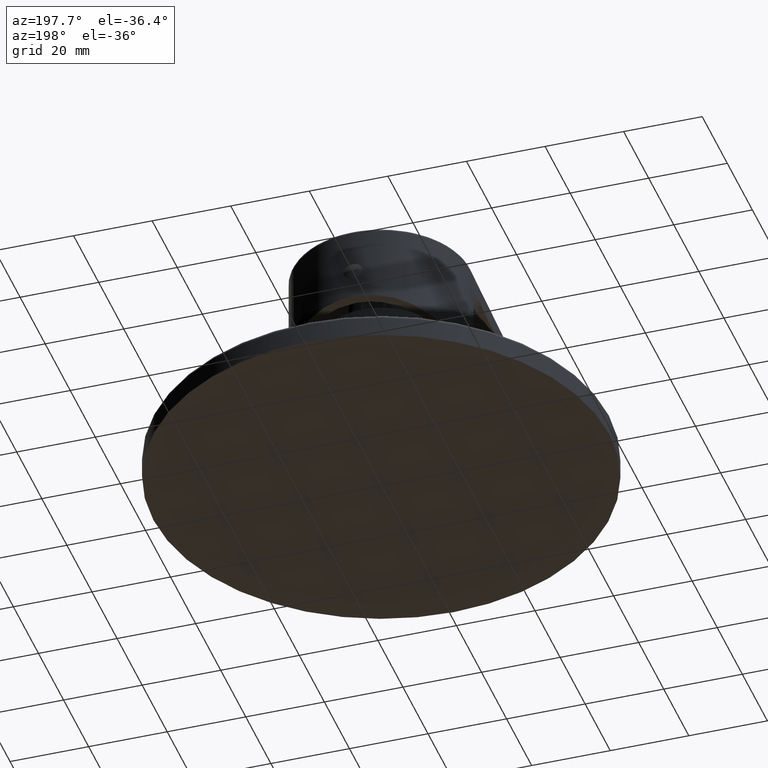
[diagram: clean part render]
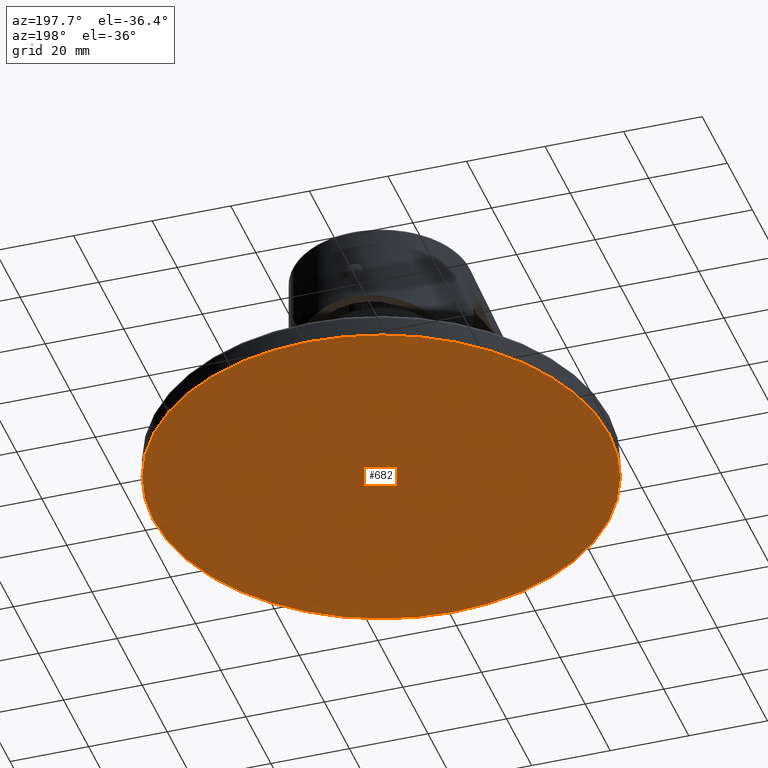
[diagram: same view with one face highlighted and labeled with its STEP entity id]
A machine part, auxiliary view. The second image highlights one B-rep face of the part: STEP entity #682.
In plain terms, the highlighted planar face has unit normal (0, 0, -1).
Its self-contained STEP definition (entity closure, byte-faithful):
#38=CARTESIAN_POINT('',(0.E0,0.E0,4.E1));
#39=DIRECTION('',(0.E0,0.E0,1.E0));
#40=DIRECTION('',(-1.E0,0.E0,0.E0));
#41=AXIS2_PLACEMENT_3D('',#38,#39,#40);
#82=CARTESIAN_POINT('',(0.E0,0.E0,4.E1));
#83=DIRECTION('',(0.E0,0.E0,-1.E0));
#84=DIRECTION('',(-1.E0,0.E0,0.E0));
#85=AXIS2_PLACEMENT_3D('',#82,#83,#84);
#465=CARTESIAN_POINT('',(-5.8E1,0.E0,4.E1));
#466=CARTESIAN_POINT('',(5.8E1,0.E0,4.E1));
#467=VERTEX_POINT('',#465);
#468=VERTEX_POINT('',#466);
#673=CARTESIAN_POINT('',(0.E0,0.E0,4.E1));
#674=DIRECTION('',(0.E0,0.E0,-1.E0));
#675=DIRECTION('',(-1.E0,0.E0,0.E0));
#676=AXIS2_PLACEMENT_3D('',#673,#674,#675);
#677=PLANE('',#676);
#678=ORIENTED_EDGE('',*,*,#660,.F.);
#679=ORIENTED_EDGE('',*,*,#506,.T.);
#680=EDGE_LOOP('',(#678,#679));
#681=FACE_OUTER_BOUND('',#680,.F.);
#682=ADVANCED_FACE('',(#681),#677,.T.);
#42=CIRCLE('',#41,5.8E1);
#86=CIRCLE('',#85,5.8E1);
#506=EDGE_CURVE('',#467,#468,#42,.T.);
#660=EDGE_CURVE('',#467,#468,#86,.T.);